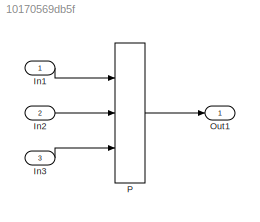
MODEL slx_10170569db5f
KIND model
CONFIG AbsTol = auto
CONFIG EnableMultiTasking = off
CONFIG FixedStep = auto
CONFIG MaxStep = auto
CONFIG MinStep = auto
CONFIG RelTol = 1e-3
CONFIG SampleTimeConstraint = Unconstrained
CONFIG Solver = FixedStepDiscrete
CONFIG SolverName = FixedStepDiscrete
CONFIG StartTime = 0.0
CONFIG StopTime = 10.0
BLOCK [Inport] In1
  IconDisplay = Port number
  PortDimensions = [3 1]
BLOCK [Inport] In2
  IconDisplay = Port number
  Port = 2
  PortDimensions = [3 1]
BLOCK [Inport] In3
  IconDisplay = Port number
  Port = 3
  PortDimensions = [3 1]
BLOCK [Outport] Out1
  IconDisplay = Port number
BLOCK [Concatenate] P
  NumInputs = 3
  Ports = [3, 1]
LINE In1:1 -> P:1
LINE In2:1 -> P:2
LINE In3:1 -> P:3
LINE P:1 -> Out1:1
